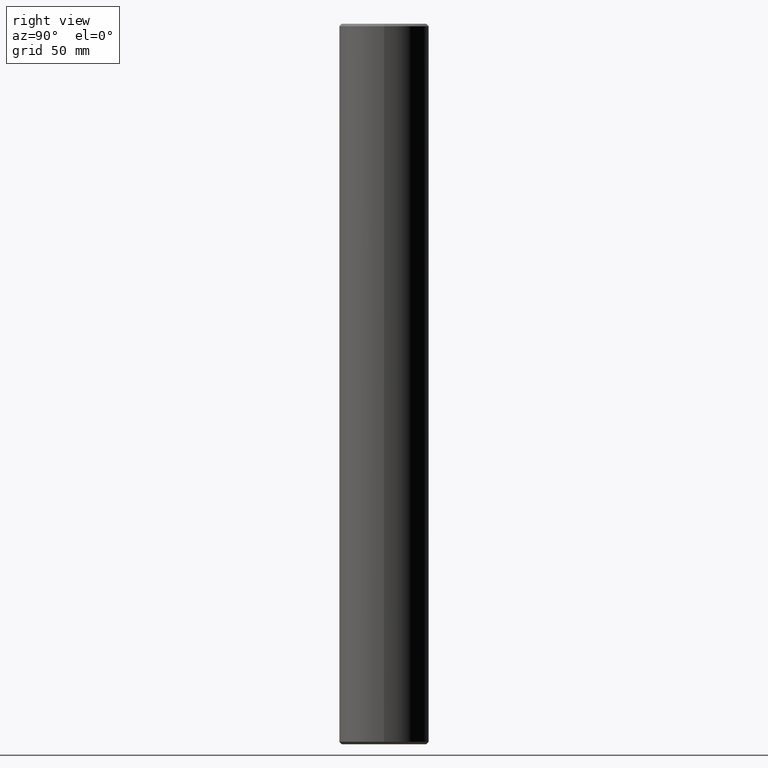
[diagram: clean part render]
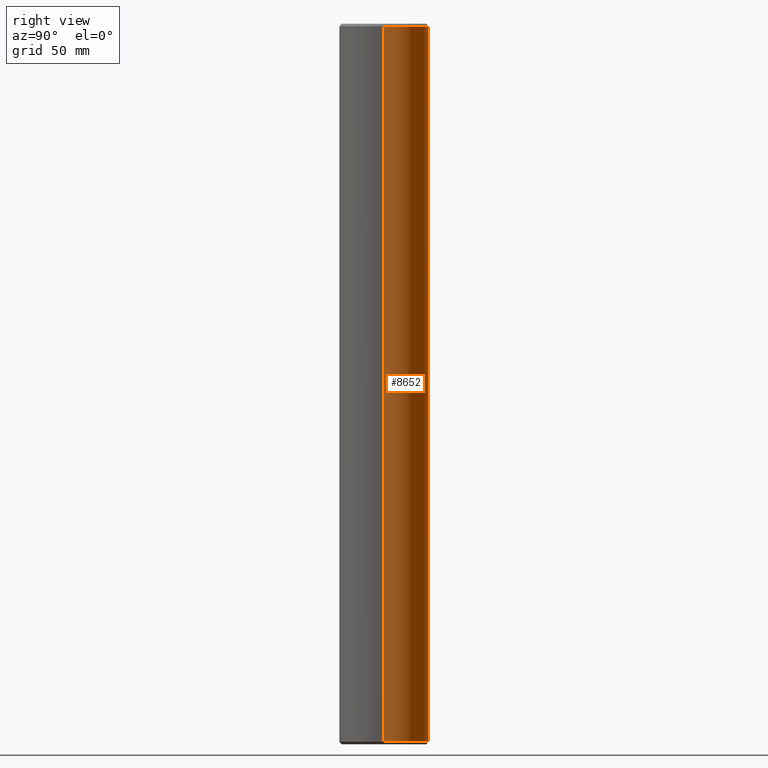
[diagram: same view with one face highlighted and labeled with its STEP entity id]
A machine part, right view. The second image highlights one B-rep face of the part: STEP entity #8652.
In plain terms, the highlighted cylindrical surface (partial cylindrical patch) has radius 18.7 mm, axis along (-0, -0, -1).
Its self-contained STEP definition (entity closure, byte-faithful):
#52 = VERTEX_POINT ( 'NONE', #2946 ) ;
#287 = CARTESIAN_POINT ( 'NONE',  ( 18.69999999999999900, 2.290089514405550500E-015, 150.0000000000000000 ) ) ;
#561 = EDGE_CURVE ( 'NONE', #15288, #4018, #3644, .T. ) ;
#706 = AXIS2_PLACEMENT_3D ( 'NONE', #9684, #3500, #12196 ) ;
#881 = ORIENTED_EDGE ( 'NONE', *, *, #4401, .T. ) ;
#908 = DIRECTION ( 'NONE',  ( 1.000000000000000000, 0.0000000000000000000, 0.0000000000000000000 ) ) ;
#1562 = CIRCLE ( 'NONE', #11456, 18.69999999999999900 ) ;
#1906 = DIRECTION ( 'NONE',  ( -0.0000000000000000000, -0.0000000000000000000, -1.000000000000000000 ) ) ;
#2946 = CARTESIAN_POINT ( 'NONE',  ( -18.69999999999999900, 0.0000000000000000000, 149.0000000000000300 ) ) ;
#3136 = CARTESIAN_POINT ( 'NONE',  ( -18.69999999999999900, 0.0000000000000000000, 150.0000000000000000 ) ) ;
#3500 = DIRECTION ( 'NONE',  ( -0.0000000000000000000, -0.0000000000000000000, -1.000000000000000000 ) ) ;
#3644 = LINE ( 'NONE', #287, #16121 ) ;
#3972 = VERTEX_POINT ( 'NONE', #8912 ) ;
#4018 = VERTEX_POINT ( 'NONE', #10050 ) ;
#4401 = EDGE_CURVE ( 'NONE', #4018, #3972, #13102, .T. ) ;
#4775 = EDGE_CURVE ( 'NONE', #52, #15288, #1562, .T. ) ;
#6777 = FACE_OUTER_BOUND ( 'NONE', #15334, .T. ) ;
#7207 = DIRECTION ( 'NONE',  ( -0.0000000000000000000, -0.0000000000000000000, 1.000000000000000000 ) ) ;
#7300 = LINE ( 'NONE', #3136, #10964 ) ;
#7889 = DIRECTION ( 'NONE',  ( -0.0000000000000000000, -0.0000000000000000000, -1.000000000000000000 ) ) ;
#8311 = CARTESIAN_POINT ( 'NONE',  ( 0.0000000000000000000, 0.0000000000000000000, -148.9999999999998300 ) ) ;
#8652 = ADVANCED_FACE ( 'NONE', ( #6777 ), #10623, .T. ) ;
#8912 = CARTESIAN_POINT ( 'NONE',  ( -18.69999999999999900, 0.0000000000000000000, -148.9999999999998300 ) ) ;
#9684 = CARTESIAN_POINT ( 'NONE',  ( 0.0000000000000000000, 0.0000000000000000000, 150.0000000000000000 ) ) ;
#10050 = CARTESIAN_POINT ( 'NONE',  ( 18.69999999999999900, 2.290089514405550500E-015, -148.9999999999998300 ) ) ;
#10623 = CYLINDRICAL_SURFACE ( 'NONE', #706, 18.69999999999999900 ) ;
#10964 = VECTOR ( 'NONE', #1906, 1000.000000000000000 ) ;
#11017 = DIRECTION ( 'NONE',  ( 0.0000000000000000000, 0.0000000000000000000, -1.000000000000000000 ) ) ;
#11035 = ORIENTED_EDGE ( 'NONE', *, *, #12770, .F. ) ;
#11456 = AXIS2_PLACEMENT_3D ( 'NONE', #15981, #11017, #14654 ) ;
#11698 = ORIENTED_EDGE ( 'NONE', *, *, #561, .T. ) ;
#12196 = DIRECTION ( 'NONE',  ( -1.000000000000000000, 0.0000000000000000000, 0.0000000000000000000 ) ) ;
#12768 = ORIENTED_EDGE ( 'NONE', *, *, #4775, .T. ) ;
#12770 = EDGE_CURVE ( 'NONE', #52, #3972, #7300, .T. ) ;
#13102 = CIRCLE ( 'NONE', #15636, 18.69999999999999900 ) ;
#14373 = CARTESIAN_POINT ( 'NONE',  ( 18.69999999999999900, 2.290089514405550500E-015, 149.0000000000000300 ) ) ;
#14654 = DIRECTION ( 'NONE',  ( 1.000000000000000000, 0.0000000000000000000, 0.0000000000000000000 ) ) ;
#15288 = VERTEX_POINT ( 'NONE', #14373 ) ;
#15334 = EDGE_LOOP ( 'NONE', ( #12768, #11698, #881, #11035 ) ) ;
#15636 = AXIS2_PLACEMENT_3D ( 'NONE', #8311, #7207, #908 ) ;
#15981 = CARTESIAN_POINT ( 'NONE',  ( 0.0000000000000000000, 0.0000000000000000000, 149.0000000000000300 ) ) ;
#16121 = VECTOR ( 'NONE', #7889, 1000.000000000000000 ) ;